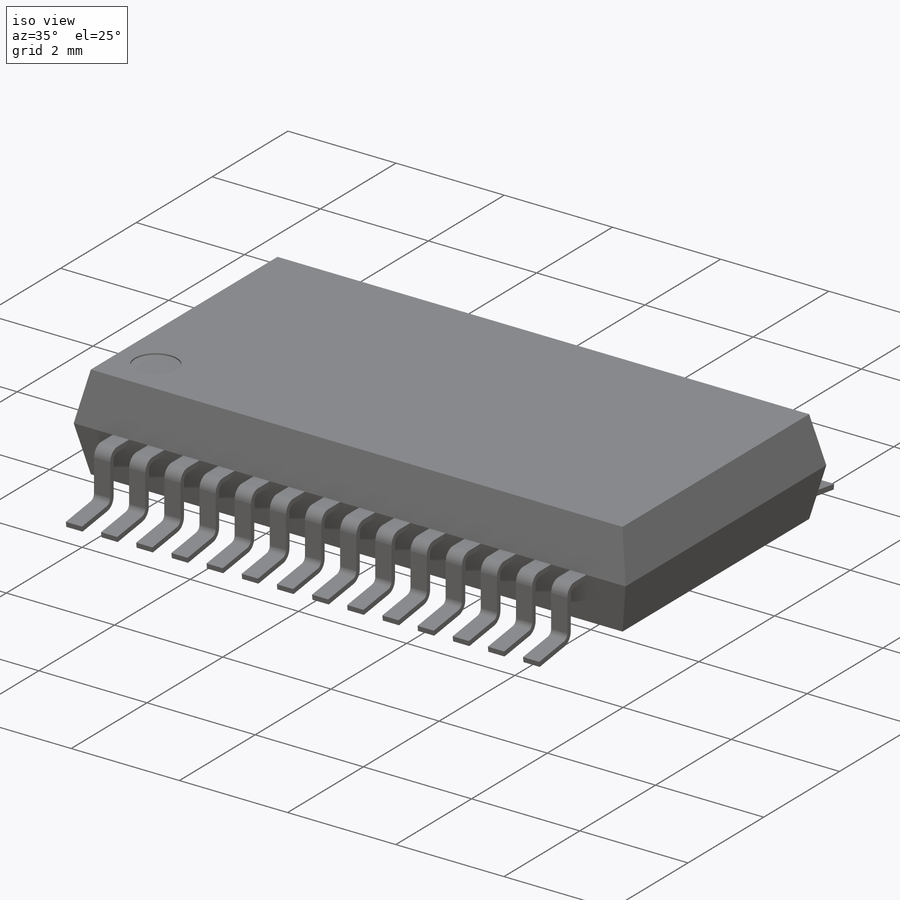
[diagram: iso view]
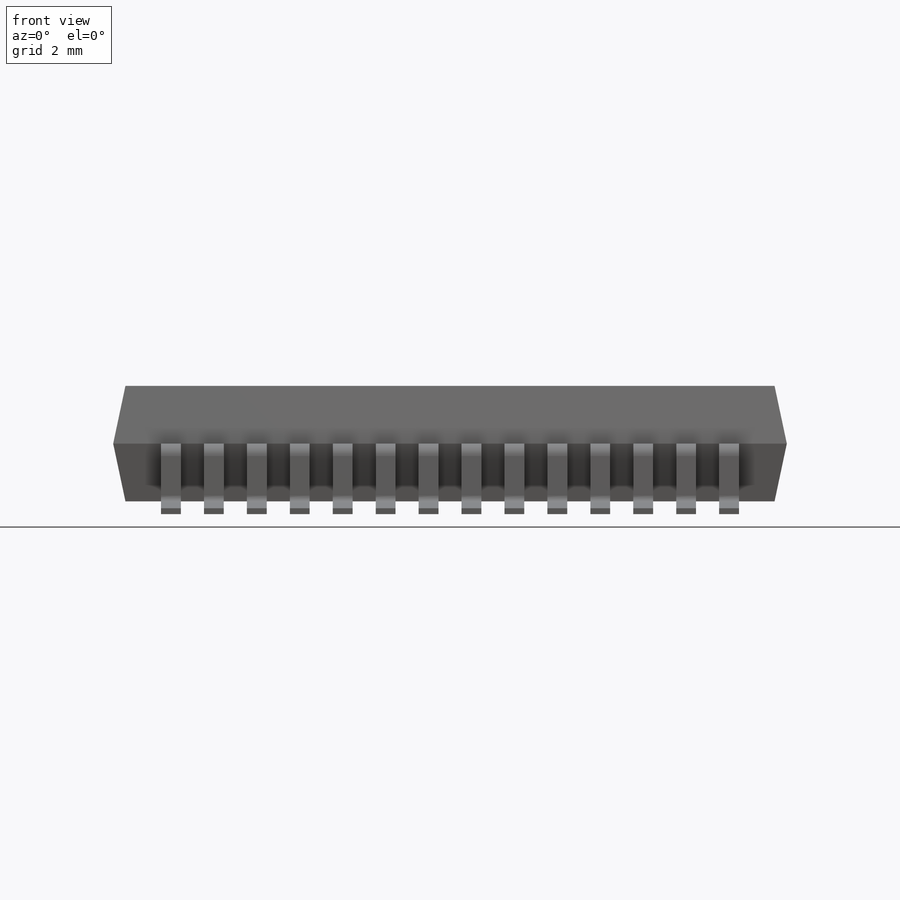
[diagram: front view]
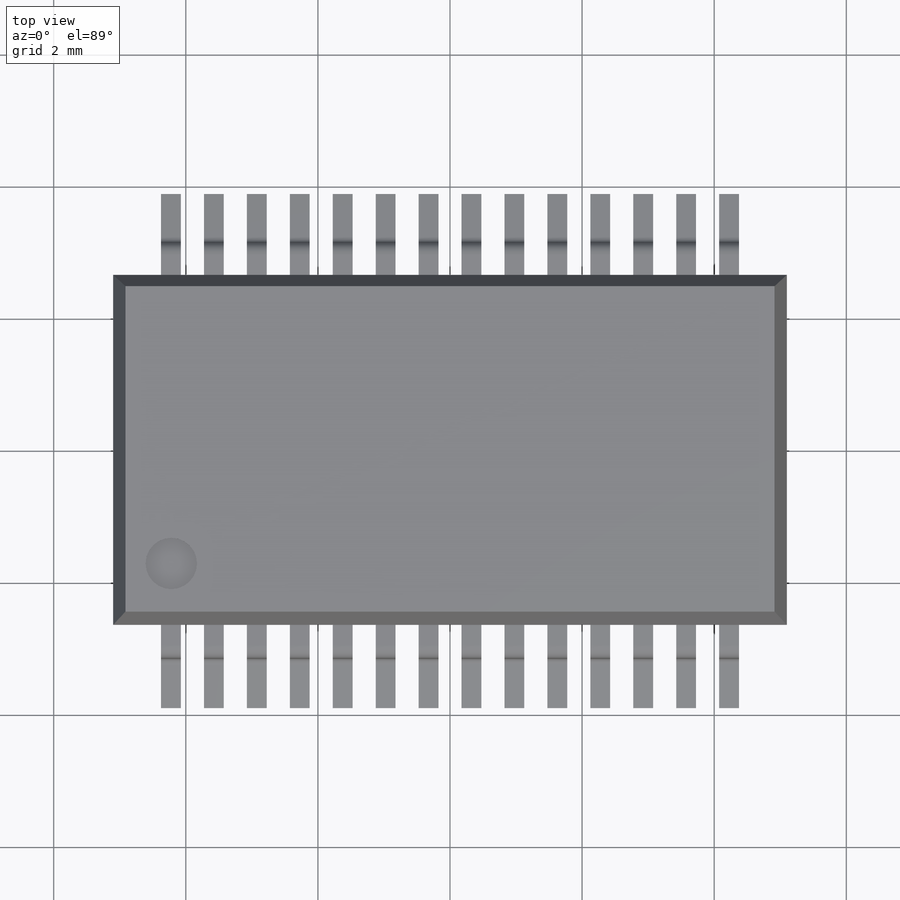
[diagram: top view]
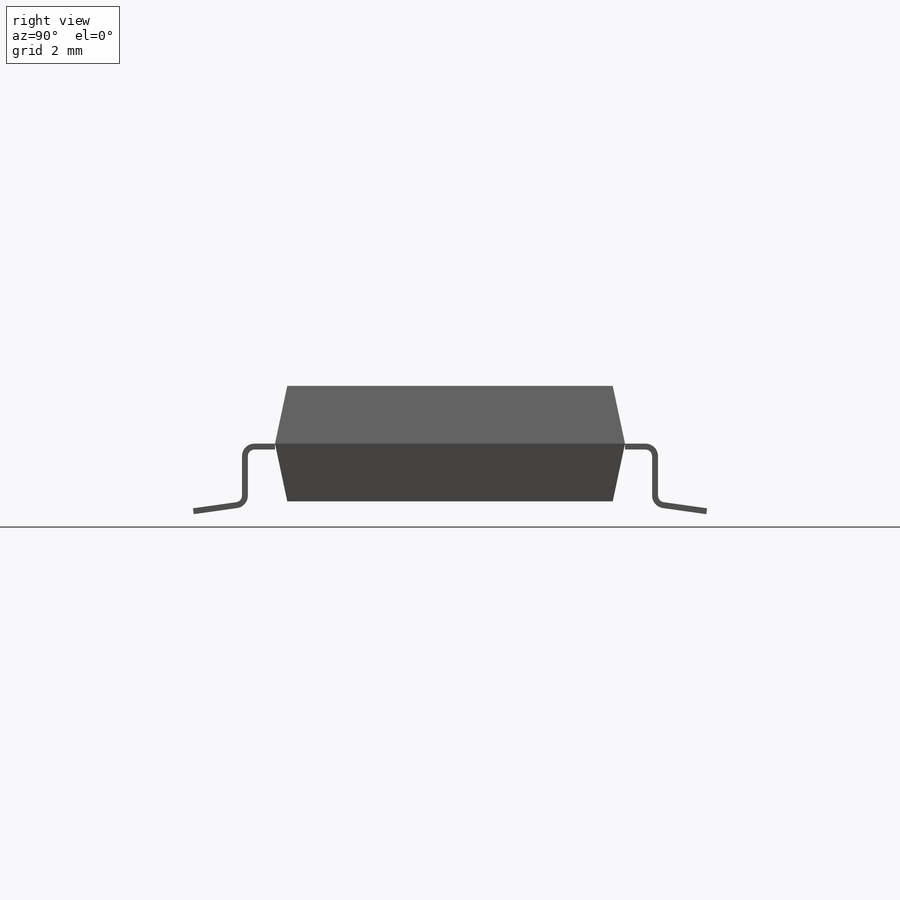
[diagram: right view]
SOLIDWORKS PART (.sldprt)
format: sldprt  version: not decoded by parser v0  size: 1,286,656 bytes
history: native  units: mm
features: extrude x61, pattern_linear x54, sheet_metal_op x30, mirror x28, plane x3, material x1, cut_extrude x1 + 56 further entries (+13 scaffold rows collapsed; 28 parser-record rows omitted)
feature tree (275):
  scaffold x13  (default folders/planes/origin — collapsed)
  material  "Material <not specified>"
  extrude  "Boss-Extrude1"  Depth=0.875mm
  extrude  "Sketch63"  [1 undecoded]
  plane  "Plane1"
  plane  "Plane2"
  plane  "Plane3"  Offset=0.325mm
  extrude  "Sketch2"  Depth=0.5mm
  sheet_metal_op  "Base-Flange1"
  sheet_metal_op  "BaseBend2"
  pattern_linear  "LPattern1"  Count1=1 Spacing1=0.1mm Spacing2=1570.796327mm
  pattern_linear  "DerivedBend2"  Count1=2 Spacing1=0.1mm Spacing2=1431.169987mm
  pattern_linear  "DerivedBend3"  Count1=1 Spacing1=0.1mm Spacing2=1570.796327mm
  pattern_linear  "DerivedBend4"  Count1=2 Spacing1=0.1mm Spacing2=1431.169987mm
  pattern_linear  "DerivedBend5"  Count1=1 Spacing1=0.1mm Spacing2=1570.796327mm
  pattern_linear  "DerivedBend6"  Count1=2 Spacing1=0.1mm Spacing2=1431.169987mm
  pattern_linear  "DerivedBend7"  Count1=1 Spacing1=0.1mm Spacing2=1570.796327mm
  pattern_linear  "DerivedBend8"  Count1=2 Spacing1=0.1mm Spacing2=1431.169987mm
  pattern_linear  "DerivedBend9"  Count1=1 Spacing1=0.1mm Spacing2=1570.796327mm
  pattern_linear  "DerivedBend10"  Count1=2 Spacing1=0.1mm Spacing2=1431.169987mm
  pattern_linear  "DerivedBend11"  Count1=1 Spacing1=0.1mm Spacing2=1570.796327mm
  pattern_linear  "DerivedBend12"  Count1=2 Spacing1=0.1mm Spacing2=1431.169987mm
  pattern_linear  "DerivedBend13"  Count1=1 Spacing1=0.1mm Spacing2=1570.796327mm
  pattern_linear  "DerivedBend14"  Count1=2 Spacing1=0.1mm Spacing2=1431.169987mm
  pattern_linear  "DerivedBend15"  Count1=1 Spacing1=0.1mm Spacing2=1570.796327mm
  pattern_linear  "DerivedBend16"  Count1=2 Spacing1=0.1mm Spacing2=1431.169987mm
  pattern_linear  "DerivedBend17"  Count1=1 Spacing1=0.1mm Spacing2=1570.796327mm
  pattern_linear  "DerivedBend18"  Count1=2 Spacing1=0.1mm Spacing2=1431.169987mm
  pattern_linear  "DerivedBend19"  Count1=1 Spacing1=0.1mm Spacing2=1570.796327mm
  pattern_linear  "DerivedBend20"  Count1=2 Spacing1=0.1mm Spacing2=1431.169987mm
  pattern_linear  "DerivedBend21"  Count1=1 Spacing1=0.1mm Spacing2=1570.796327mm
  pattern_linear  "DerivedBend22"  Count1=2 Spacing1=0.1mm Spacing2=1431.169987mm
  pattern_linear  "DerivedBend23"  Count1=1 Spacing1=0.1mm Spacing2=1570.796327mm
  pattern_linear  "DerivedBend24"  Count1=2 Spacing1=0.1mm Spacing2=1431.169987mm
  pattern_linear  "DerivedBend25"  Count1=1 Spacing1=0.1mm Spacing2=1570.796327mm
  pattern_linear  "DerivedBend26"  Count1=2 Count2=8 Spacing1=0.1mm Spacing2=1431.169987mm
  mirror  "Mirror1"
  pattern_linear  "DerivedBend27"  Count1=1 Spacing1=0.1mm Spacing2=1570.796327mm
  pattern_linear  "DerivedBend28"  Count1=2 Spacing1=0.1mm Spacing2=1431.169987mm
  pattern_linear  "DerivedBend29"  Count1=1 Spacing1=0.1mm Spacing2=1570.796327mm
  pattern_linear  "DerivedBend30"  Count1=2 Spacing1=0.1mm Spacing2=1431.169987mm
  pattern_linear  "DerivedBend31"  Count1=1 Spacing1=0.1mm Spacing2=1570.796327mm
  pattern_linear  "DerivedBend32"  Count1=2 Spacing1=0.1mm Spacing2=1431.169987mm
  pattern_linear  "DerivedBend33"  Count1=1 Spacing1=0.1mm Spacing2=1570.796327mm
  pattern_linear  "DerivedBend34"  Count1=2 Spacing1=0.1mm Spacing2=1431.169987mm
  pattern_linear  "DerivedBend35"  Count1=1 Spacing1=0.1mm Spacing2=1570.796327mm
  pattern_linear  "DerivedBend36"  Count1=2 Spacing1=0.1mm Spacing2=1431.169987mm
  pattern_linear  "DerivedBend37"  Count1=1 Spacing1=0.1mm Spacing2=1570.796327mm
  pattern_linear  "DerivedBend38"  Count1=2 Spacing1=0.1mm Spacing2=1431.169987mm
  pattern_linear  "DerivedBend39"  Count1=1 Spacing1=0.1mm Spacing2=1570.796327mm
  pattern_linear  "DerivedBend40"  Count1=2 Spacing1=0.1mm Spacing2=1431.169987mm
  pattern_linear  "DerivedBend41"  Count1=1 Spacing1=0.1mm Spacing2=1570.796327mm
  pattern_linear  "DerivedBend42"  Count1=2 Spacing1=0.1mm Spacing2=1431.169987mm
  pattern_linear  "DerivedBend43"  Count1=1 Spacing1=0.1mm Spacing2=1570.796327mm
  pattern_linear  "DerivedBend44"  Count1=2 Spacing1=0.1mm Spacing2=1431.169987mm
  pattern_linear  "DerivedBend45"  Count1=1 Spacing1=0.1mm Spacing2=1431.169987mm
  pattern_linear  "DerivedBend46"  Count1=2 Spacing1=0.1mm Spacing2=1570.796327mm
  pattern_linear  "DerivedBend47"  Count1=1 Spacing1=0.1mm Spacing2=1570.796327mm
  pattern_linear  "DerivedBend48"  Count1=2 Spacing1=0.1mm Spacing2=1431.169987mm
  pattern_linear  "DerivedBend49"  Count1=1 Spacing1=0.1mm Spacing2=1570.796327mm
  pattern_linear  "DerivedBend50"  Count1=2 Spacing1=0.1mm Spacing2=1431.169987mm
  pattern_linear  "DerivedBend51"  Count1=1 Spacing1=0.1mm Spacing2=1570.796327mm
  pattern_linear  "DerivedBend52"  Count1=2 Spacing1=0.1mm Spacing2=1431.169987mm
  pattern_linear  "DerivedBend53"  Count1=1 Spacing1=0.1mm Spacing2=1570.796327mm
  pattern_linear  "DerivedBend54"  Count1=2 Spacing1=0.1mm Spacing2=1431.169987mm
  cut_extrude  "Cut-Extrude1"  Depth=0.025mm
  extrude  "Bend-Lines1"  [1 undecoded]
  extrude  "Bounding-Box1"  [1 undecoded]
  sheet_metal_op  "Sheet-Metal2"
  "Flat-Pattern2"
  extrude  "Bend-Lines2"  [1 undecoded]
  extrude  "Bounding-Box2"  [1 undecoded]
  parser-record x28  (decoder bookkeeping rows leaked as tree rows — omitted from the tree; the rows remain in map.json)
  "Flatten-<BaseBend2>1"
  mirror  "Sheet-Metal3"
  sheet_metal_op  "Flat-Pattern3"
  extrude  "Bend-Lines3"  [1 undecoded]
  extrude  "Bounding-Box3"  [1 undecoded]
  "Flatten-<DerivedBend1>1"
  "Flatten-<DerivedBend2>1"
  mirror  "Sheet-Metal4"
  sheet_metal_op  "Flat-Pattern4"
  extrude  "Bend-Lines4"  [1 undecoded]
  extrude  "Bounding-Box4"  [1 undecoded]
  "Flatten-<DerivedBend3>1"
  "Flatten-<DerivedBend4>1"
  mirror  "Sheet-Metal5"
  sheet_metal_op  "Flat-Pattern5"
  extrude  "Bend-Lines5"  [1 undecoded]
  extrude  "Bounding-Box5"  [1 undecoded]
  "Flatten-<DerivedBend5>1"
  "Flatten-<DerivedBend6>1"
  mirror  "Sheet-Metal6"
  sheet_metal_op  "Flat-Pattern6"
  extrude  "Bend-Lines6"  [1 undecoded]
  extrude  "Bounding-Box6"  [1 undecoded]
  "Flatten-<DerivedBend7>1"
  "Flatten-<DerivedBend8>1"
  mirror  "Sheet-Metal7"
  sheet_metal_op  "Flat-Pattern7"
  extrude  "Bend-Lines7"  [1 undecoded]
  extrude  "Bounding-Box7"  [1 undecoded]
  "Flatten-<DerivedBend9>1"
  "Flatten-<DerivedBend10>1"
  mirror  "Sheet-Metal8"
  sheet_metal_op  "Flat-Pattern8"
  extrude  "Bend-Lines8"  [1 undecoded]
  extrude  "Bounding-Box8"  [1 undecoded]
  "Flatten-<DerivedBend11>1"
  "Flatten-<DerivedBend12>1"
  mirror  "Sheet-Metal9"
  sheet_metal_op  "Flat-Pattern9"
  extrude  "Bend-Lines9"  [1 undecoded]
  extrude  "Bounding-Box9"  [1 undecoded]
  "Flatten-<DerivedBend13>1"
  "Flatten-<DerivedBend14>1"
  mirror  "Sheet-Metal10"
  sheet_metal_op  "Flat-Pattern10"
  extrude  "Bend-Lines10"  [1 undecoded]
  extrude  "Bounding-Box10"  [1 undecoded]
  "Flatten-<DerivedBend15>1"
  "Flatten-<DerivedBend16>1"
  mirror  "Sheet-Metal11"
  sheet_metal_op  "Flat-Pattern11"
  extrude  "Bend-Lines11"  [1 undecoded]
  extrude  "Bounding-Box11"  [1 undecoded]
  "Flatten-<DerivedBend17>1"
  "Flatten-<DerivedBend18>1"
  mirror  "Sheet-Metal12"
  sheet_metal_op  "Flat-Pattern12"
  extrude  "Bend-Lines12"  [1 undecoded]
  extrude  "Bounding-Box12"  [1 undecoded]
  "Flatten-<DerivedBend19>1"
  "Flatten-<DerivedBend20>1"
  mirror  "Sheet-Metal13"
  sheet_metal_op  "Flat-Pattern13"
  extrude  "Bend-Lines13"  [1 undecoded]
  extrude  "Bounding-Box13"  [1 undecoded]
  "Flatten-<DerivedBend21>1"
  "Flatten-<DerivedBend22>1"
  mirror  "Sheet-Metal14"
  sheet_metal_op  "Flat-Pattern14"
  extrude  "Bend-Lines14"  [1 undecoded]
  extrude  "Bounding-Box14"  [1 undecoded]
  "Flatten-<DerivedBend23>1"
  "Flatten-<DerivedBend24>1"
  mirror  "Sheet-Metal15"
  sheet_metal_op  "Flat-Pattern15"
  extrude  "Bend-Lines15"  [1 undecoded]
  extrude  "Bounding-Box15"  [1 undecoded]
  "Flatten-<DerivedBend25>1"
  "Flatten-<DerivedBend26>1"
  mirror  "Sheet-Metal16"
  sheet_metal_op  "Flat-Pattern16"
  extrude  "Bend-Lines16"  [1 undecoded]
  extrude  "Bounding-Box16"  [1 undecoded]
  "Flatten-<DerivedBend27>1"
  "Flatten-<DerivedBend28>1"
  mirror  "Sheet-Metal17"
  sheet_metal_op  "Flat-Pattern17"
  extrude  "Bend-Lines17"  [1 undecoded]
  extrude  "Bounding-Box17"  [1 undecoded]
  "Flatten-<DerivedBend29>1"
  "Flatten-<DerivedBend30>1"
  mirror  "Sheet-Metal18"
  sheet_metal_op  "Flat-Pattern18"
  extrude  "Bend-Lines18"  [1 undecoded]
  extrude  "Bounding-Box18"  [1 undecoded]
  "Flatten-<DerivedBend31>1"
  "Flatten-<DerivedBend32>1"
  mirror  "Sheet-Metal19"
  sheet_metal_op  "Flat-Pattern19"
  extrude  "Bend-Lines19"  [1 undecoded]
  extrude  "Bounding-Box19"  [1 undecoded]
  "Flatten-<DerivedBend33>1"
  "Flatten-<DerivedBend34>1"
  mirror  "Sheet-Metal20"
  sheet_metal_op  "Flat-Pattern20"
  extrude  "Bend-Lines20"  [1 undecoded]
  extrude  "Bounding-Box20"  [1 undecoded]
  "Flatten-<DerivedBend35>1"
  "Flatten-<DerivedBend36>1"
  mirror  "Sheet-Metal21"
  sheet_metal_op  "Flat-Pattern21"
  extrude  "Bend-Lines21"  [1 undecoded]
  extrude  "Bounding-Box21"  [1 undecoded]
  "Flatten-<DerivedBend37>1"
  "Flatten-<DerivedBend38>1"
  mirror  "Sheet-Metal22"
  sheet_metal_op  "Flat-Pattern22"
  extrude  "Bend-Lines22"  [1 undecoded]
  extrude  "Bounding-Box22"  [1 undecoded]
  "Flatten-<DerivedBend39>1"
  "Flatten-<DerivedBend40>1"
  mirror  "Sheet-Metal23"
  sheet_metal_op  "Flat-Pattern23"
  extrude  "Bend-Lines23"  [1 undecoded]
  extrude  "Bounding-Box23"  [1 undecoded]
  "Flatten-<DerivedBend41>1"
  "Flatten-<DerivedBend42>1"
  mirror  "Sheet-Metal24"
  sheet_metal_op  "Flat-Pattern24"
  extrude  "Bend-Lines24"  [1 undecoded]
  extrude  "Bounding-Box24"  [1 undecoded]
  "Flatten-<DerivedBend43>1"
  "Flatten-<DerivedBend44>1"
  mirror  "Sheet-Metal25"
  sheet_metal_op  "Flat-Pattern25"
  extrude  "Bend-Lines25"  [1 undecoded]
  extrude  "Bounding-Box25"  [1 undecoded]
  "Flatten-<DerivedBend45>1"
  "Flatten-<DerivedBend46>1"
  mirror  "Sheet-Metal26"
  sheet_metal_op  "Flat-Pattern26"
  extrude  "Bend-Lines26"  [1 undecoded]
  extrude  "Bounding-Box26"  [1 undecoded]
  "Flatten-<DerivedBend47>1"
  "Flatten-<DerivedBend48>1"
  mirror  "Sheet-Metal27"
  sheet_metal_op  "Flat-Pattern27"
  extrude  "Bend-Lines27"  [1 undecoded]
  extrude  "Bounding-Box27"  [1 undecoded]
  "Flatten-<DerivedBend49>1"
  "Flatten-<DerivedBend50>1"
  mirror  "Sheet-Metal28"
  sheet_metal_op  "Flat-Pattern28"
  extrude  "Bend-Lines28"  [1 undecoded]
  extrude  "Bounding-Box28"  [1 undecoded]
  "Flatten-<DerivedBend51>1"
  "Flatten-<DerivedBend52>1"
  mirror  "Sheet-Metal29"
  sheet_metal_op  "Flat-Pattern29"
  extrude  "Bend-Lines29"  [1 undecoded]
  extrude  "Bounding-Box29"  [1 undecoded]
  "Flatten-<DerivedBend53>1"
  "Flatten-<DerivedBend54>1"
decode coverage: 57 of 174 modeling features carry decoded parameters; 56 rows unclassified (native names shown)
note: 59 parameter values undecoded
summary: no parameter record found for 59 features
note: suppression state not decoded; provenance and decode notes live in map.json
